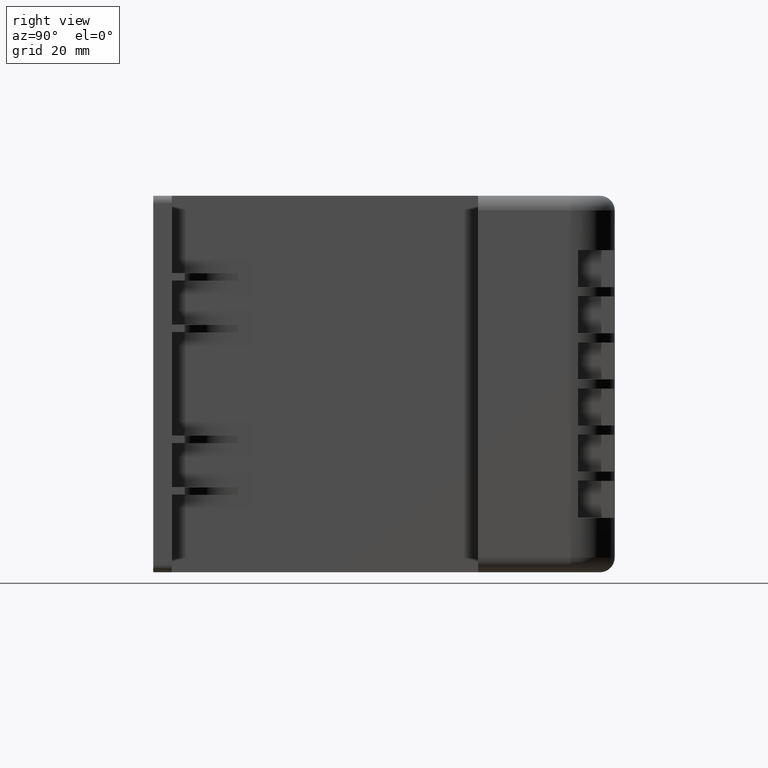
[diagram: clean part render]
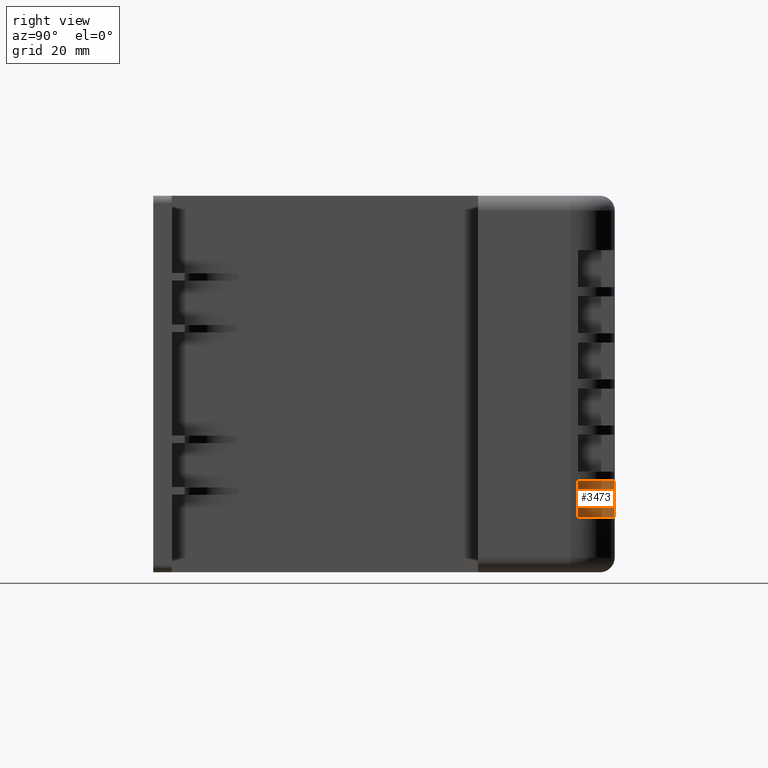
[diagram: same view with one face highlighted and labeled with its STEP entity id]
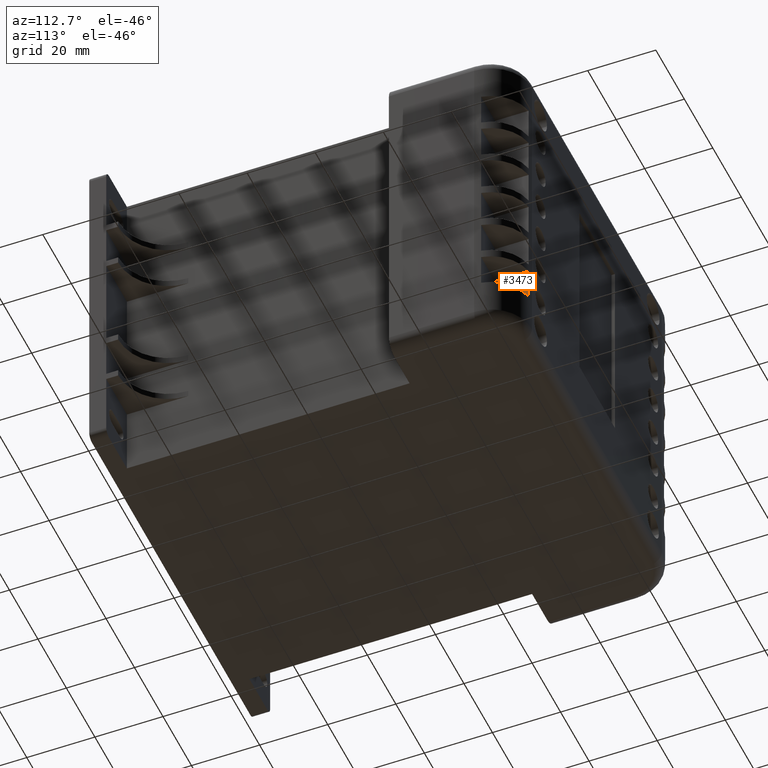
[diagram: same view with one face highlighted and labeled with its STEP entity id]
A machine part, right view. The second image highlights one B-rep face of the part: STEP entity #3473.
A second angle (auxiliary view) of the same face is appended — the face is thin or edge-on in the first view.
In plain terms, the highlighted planar face has unit normal (-1, 0, -0).
Its self-contained STEP definition (entity closure, byte-faithful):
#434=FACE_OUTER_BOUND('',#674,.T.);
#674=EDGE_LOOP('',(#2885,#2886,#2887,#2888));
#965=LINE('',#5700,#1285);
#979=LINE('',#5745,#1299);
#981=LINE('',#5748,#1301);
#999=LINE('',#5785,#1319);
#1285=VECTOR('',#4762,10.);
#1299=VECTOR('',#4798,10.);
#1301=VECTOR('',#4802,10.);
#1319=VECTOR('',#4842,10.);
#1580=VERTEX_POINT('',#5693);
#1583=VERTEX_POINT('',#5698);
#1602=VERTEX_POINT('',#5742);
#1603=VERTEX_POINT('',#5744);
#2001=EDGE_CURVE('',#1583,#1580,#965,.T.);
#2023=EDGE_CURVE('',#1603,#1602,#979,.T.);
#2025=EDGE_CURVE('',#1580,#1602,#981,.T.);
#2043=EDGE_CURVE('',#1583,#1603,#999,.T.);
#2885=ORIENTED_EDGE('',*,*,#2001,.F.);
#2886=ORIENTED_EDGE('',*,*,#2043,.T.);
#2887=ORIENTED_EDGE('',*,*,#2023,.T.);
#2888=ORIENTED_EDGE('',*,*,#2025,.F.);
#3062=PLANE('',#3892);
#3473=ADVANCED_FACE('',(#434),#3062,.F.);
#3892=AXIS2_PLACEMENT_3D('',#5784,#4840,#4841);
#4762=DIRECTION('',(-3.483052626275E-16,0.,-1.));
#4798=DIRECTION('',(4.44089209850063E-16,0.,-1.));
#4802=DIRECTION('',(0.,-1.,0.));
#4840=DIRECTION('center_axis',(-1.,0.,-4.44089209850063E-16));
#4841=DIRECTION('ref_axis',(4.44089209850063E-16,0.,-1.));
#4842=DIRECTION('',(0.,-1.,0.));
#5693=CARTESIAN_POINT('',(-10.,36.8321595661992,14.75));
#5698=CARTESIAN_POINT('',(-10.,36.8321595661992,24.75));
#5700=CARTESIAN_POINT('',(-10.,36.8321595661992,76.5));
#5742=CARTESIAN_POINT('',(-10.,27.,14.75));
#5744=CARTESIAN_POINT('',(-10.,27.,24.75));
#5745=CARTESIAN_POINT('',(-10.,27.,14.75));
#5748=CARTESIAN_POINT('',(-10.,37.,14.75));
#5784=CARTESIAN_POINT('Origin',(-10.,37.,24.75));
#5785=CARTESIAN_POINT('',(-10.,37.,24.75));